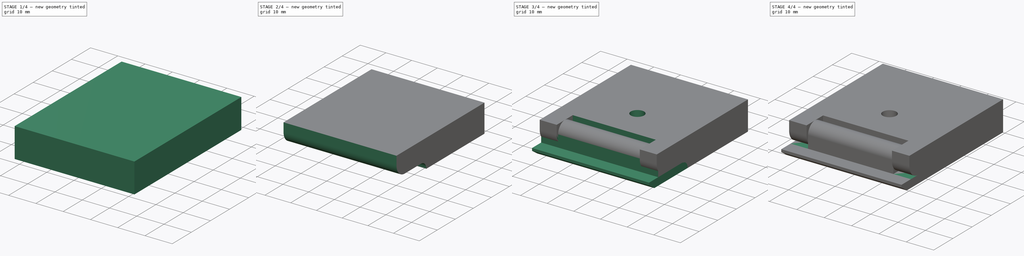
[diagram: build sequence overview — one tinted view per stage of 4, left to right]
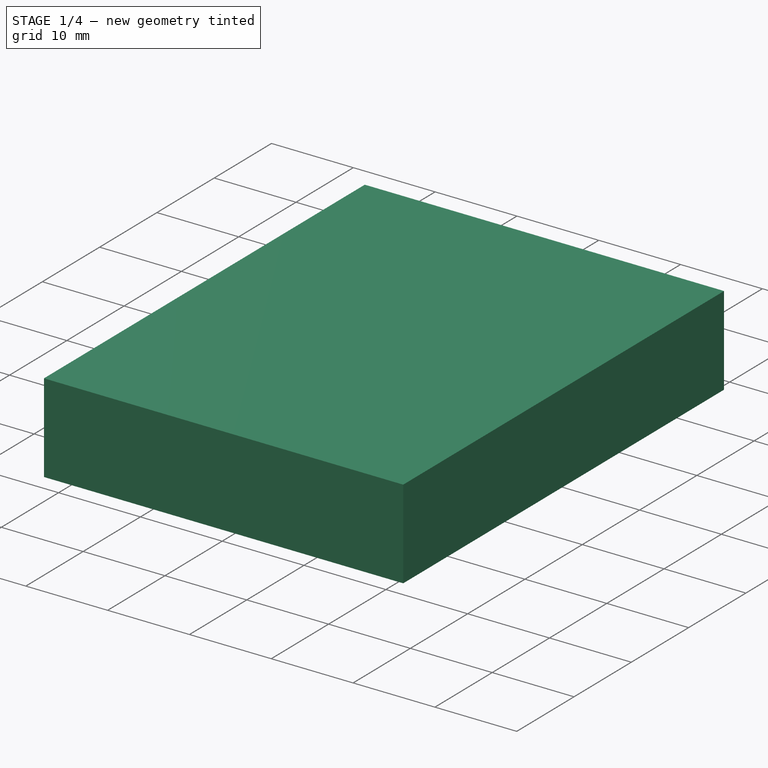
[diagram: stage 1 of 4 — iso view after this stage's code; geometry added in this stage tinted green]
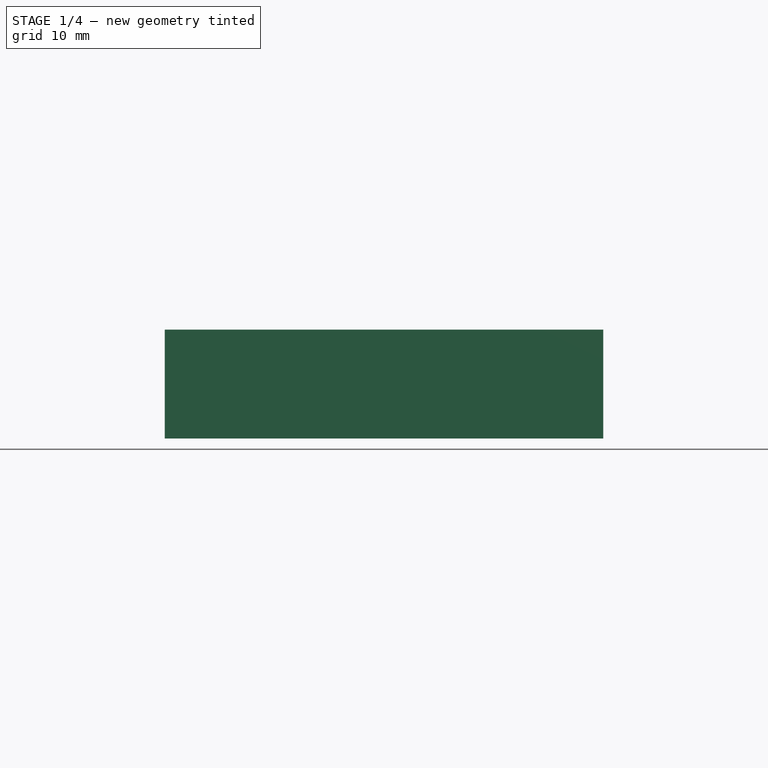
[diagram: stage 1 of 4 — front view after this stage's code; geometry added in this stage tinted green]
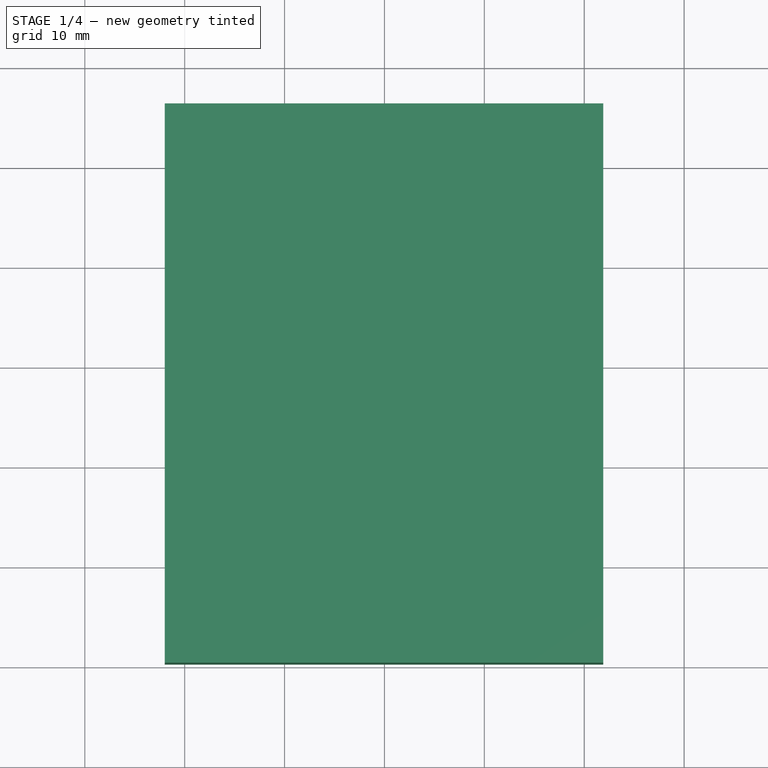
[diagram: stage 1 of 4 — top view after this stage's code; geometry added in this stage tinted green]
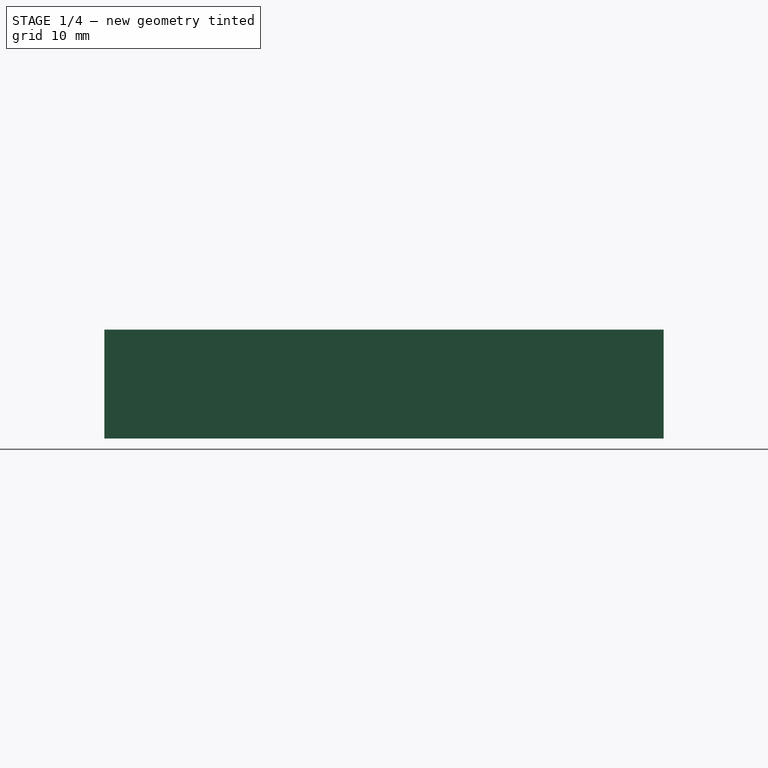
[diagram: stage 1 of 4 — right view after this stage's code; geometry added in this stage tinted green]
FCSTD DOCUMENT  (FreeCAD 0.17R7745 (Git))
Label: Logitech C920 webcam
License: All rights reserved
LicenseURL: http://en.wikipedia.org/wiki/All_rights_reserved
objects: Part::Feature×7, Sketcher::SketchObject×7, PartDesign::Pocket×5, App::DocumentObjectGroup×4, Part::Cylinder×2, Part::Extrusion×2, Spreadsheet::Sheet×1
note: 28 computed .brp shape members not serialized (recipe doc carries the construction recipe); baked Part::Feature solids carry a one-line shape summary decoded from their .brp

FEATURE [Spreadsheet::Sheet] Spreadsheet  label="Dimensions"
  cells = A1=BaseWidth; B1(BaseWidth)==60mm; A2=BaseHeight; B2(BaseHeight)==2cm; A3=BaseThickness; B3(BaseThickness)==1mm; A5=BackWidth; B5(BackWidth)==43.9111mm; A6=BackHeight; B6(BackHeight)==80mm; A7=BackThickness; B7(BackThickness)==15mm; A8=BackScrewHoleDiameter; B8(BackScrewHoleDiameter)==5mm
FEATURE [Part::Feature] Part__Feature  label="Logitech C920 - Arm stock"
  Placement = pos=(66.9556,66.3038,41.2995) rot=(0,0.707107,-0.707107;3.14159rad)
  shape: bbox 44.07 x 62.25 x 22.71 mm, 41 faces (baked)
FEATURE [Part::Feature] Part__Feature001  label="Logitech C920"
  Placement = pos=(0,1.80377,24.7995) rot=(-1,0,0;1.5708rad)
  shape: bbox 93.99 x 24 x 36.36 mm, 77 faces (baked)
FEATURE [Part::Feature] Part__Feature002  label="Logitech C920 - Glass"
  Placement = pos=(49.9697,2.30377,11.2065) rot=(0,0.707107,-0.707107;3.14159rad)
  shape: bbox 61 x 0.51 x 24.19 mm, 110 faces (baked)
FEATURE [Part::Feature] Part__Feature003  label="Tripod Screw"
  Placement = pos=(49.9556,38.3038,44.7935) rot=(-1,0,0;1.5708rad)
  shape: bbox 11.5 x 11.5 x 15.06 mm, 35 faces (baked)
FEATURE [Part::Feature] Part__Feature004  label="2mm Swivel Pin"
  Placement = pos=(52.7056,38.3038,43.2935) rot=(-1,0,0;1.5708rad)
  shape: bbox 5 x 2 x 2 mm, 4 faces (baked)
FEATURE [Part::Feature] Part__Feature005  label="2mm Swivel Pin001"
  Placement = pos=(42.2056,38.3038,43.2935) rot=(-1,0,0;1.5708rad)
  shape: bbox 5 x 2 x 2 mm, 4 faces (baked)
FEATURE [Part::Feature] Part__Feature006  label="D-Ring"
  Placement = pos=(49.9137,38.3038,45.0435) rot=(-1,0,0;1.5708rad)
  shape: bbox 16 x 9.75 x 3.5 mm, 16 faces (baked)
FEATURE [App::DocumentObjectGroup] Group  label="Tripod screw"
  Group = -> [Part__Feature003,Part__Feature004,Part__Feature005,Part__Feature006]
FEATURE [Sketcher::SketchObject] Sketch
  ExternalGeometry = -> [Part__Feature]
  MapMode = 5
  Placement = pos=(69.9519,66.4084,41.2995) rot=(0.707053,0.012342,0.707053;3.16628rad)
  Support = -> [Part__Feature]
  sketch-geometry (4):
    g0: LineSegment StartX=-11.9 StartY=56.1388 StartZ=0 EndX=0 EndY=56.1388 EndZ=0
    g1: LineSegment StartX=0 StartY=56.1388 StartZ=0 EndX=0 EndY=-5 EndZ=0
    g2: LineSegment StartX=0 StartY=-5 StartZ=0 EndX=-11.9 EndY=-5 EndZ=0
    g3: LineSegment StartX=-11.9 StartY=-5 StartZ=0 EndX=-11.9 EndY=56.1388 EndZ=0
  constraints (12):
    c: DistanceX(g-4,g2) = 6.1
    c: DistanceY(g1,g-1) = 5
    c: Coincident(g1,g2)
    c: Horizontal(g2)
    c: Vertical(g3)
    c: Vertical(g1)
    c: Horizontal(g0)
    c: Coincident(g1,g0)
    c: Coincident(g3,g0)
    c: PointOnObject(g0,g-3)
    c: Coincident(g2,g3)
    c: PointOnObject(g1,g-5)
FEATURE [PartDesign::Pocket] Pocket  label="Logitech C920 - Arm top"
  Length = 5
  Placement = pos=(66.9556,66.3038,41.2995) rot=(0,0.707107,-0.707107;3.14159rad)
  Profile = -> Sketch
  Type = 1
FEATURE [Sketcher::SketchObject] Sketch001  label="Logitech C920 - Arm bottom stock shape"
  ExternalGeometry = -> [Pocket]
  MapMode = 5
  Placement = pos=(66.9556,66.3038,29.3995) rot=(0,0,1;3.14159rad)
  Support = -> [Pocket]
  sketch-geometry (4):
    g0: LineSegment StartX=-4.95556 StartY=56 StartZ=0 EndX=38.9556 EndY=56 EndZ=0
    g1: LineSegment StartX=38.9556 StartY=56 StartZ=0 EndX=38.9556 EndY=0 EndZ=0
    g2: LineSegment StartX=38.9556 StartY=0 StartZ=0 EndX=-4.95556 EndY=0 EndZ=0
    g3: LineSegment StartX=-4.95556 StartY=0 StartZ=0 EndX=-4.95556 EndY=56 EndZ=0
  constraints (11):
    c: Coincident(g0,g1)
    c: Coincident(g1,g2)
    c: Coincident(g2,g3)
    c: Coincident(g3,g0)
    c: Horizontal(g0)
    c: Horizontal(g2)
    c: Vertical(g1)
    c: Vertical(g3)
    c: Coincident(g0,g-4)
    c: PointOnObject(g-3,g1)
    c: PointOnObject(g-3,g2)
FEATURE [Part::Extrusion] Extrude  label="Logitech C920 - Arm bottom stock"
  Base = -> Sketch001
  Dir = (0,0,10.9)
  Solid = true
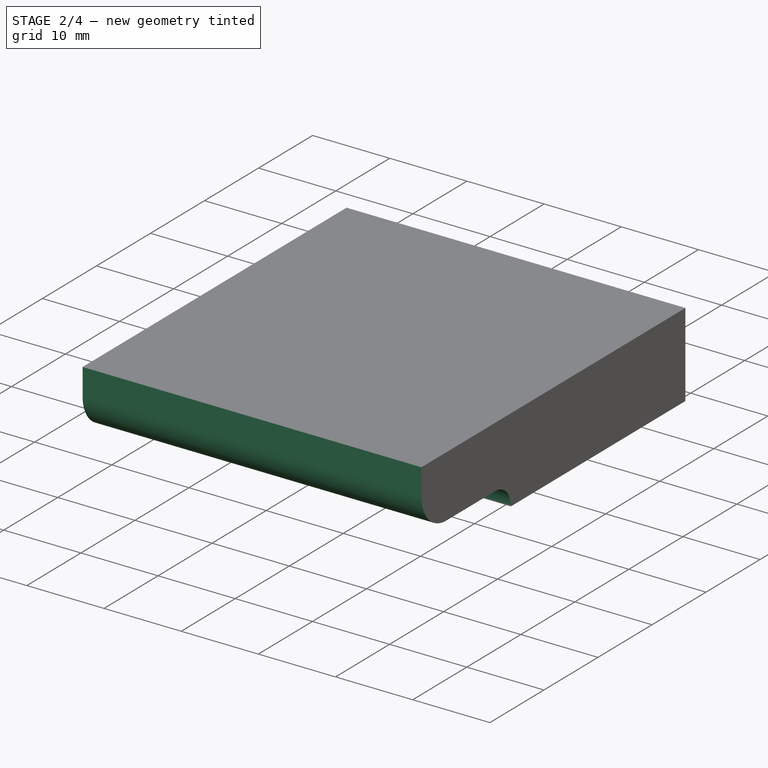
[diagram: stage 2 of 4 — iso view after this stage's code; geometry added in this stage tinted green]
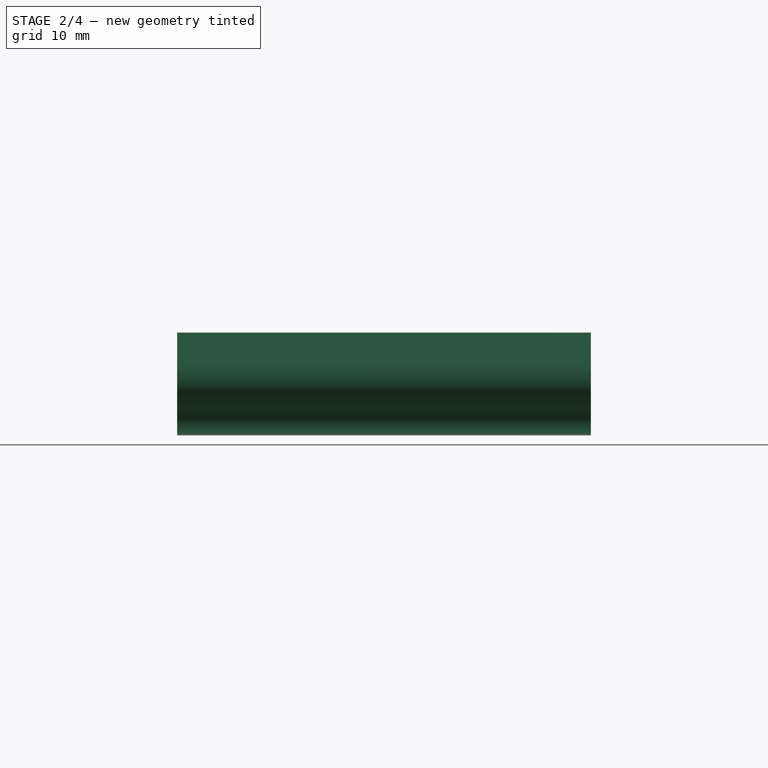
[diagram: stage 2 of 4 — front view after this stage's code; geometry added in this stage tinted green]
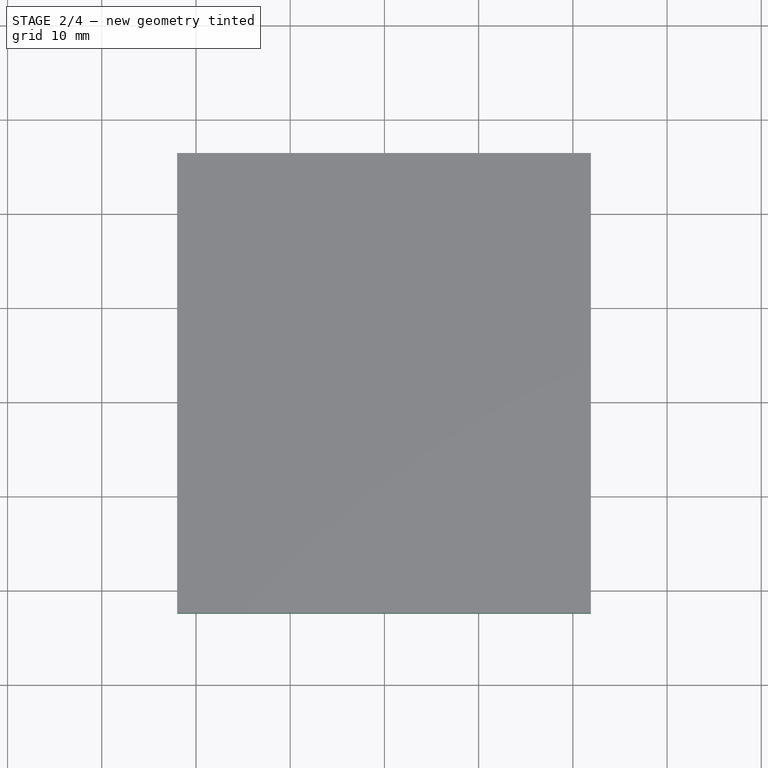
[diagram: stage 2 of 4 — top view after this stage's code; geometry added in this stage tinted green]
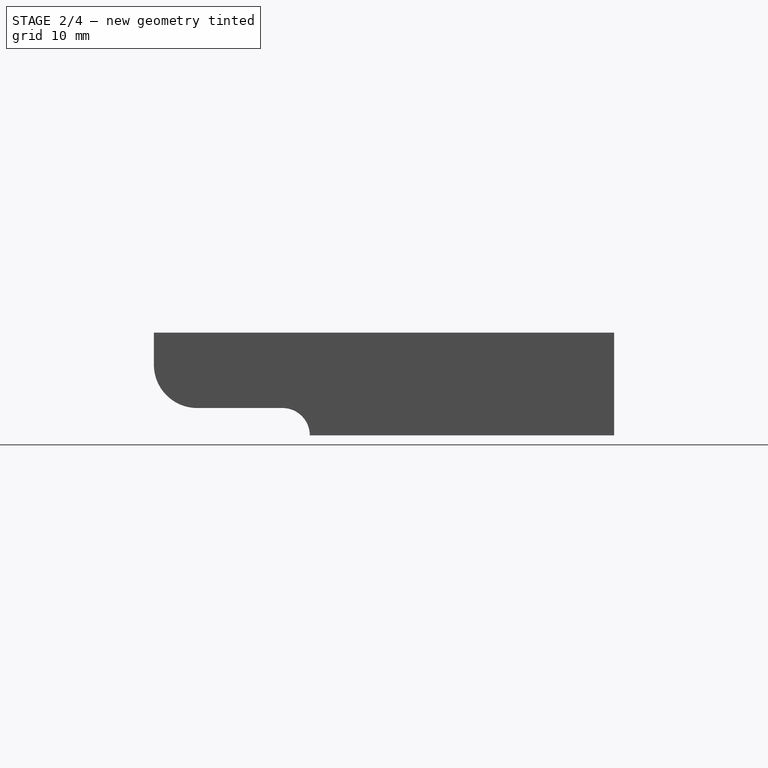
[diagram: stage 2 of 4 — right view after this stage's code; geometry added in this stage tinted green]
FEATURE [Part::Cylinder] Cylinder  label="Logitech C920 - Arm bottom hinge"
  Angle = 360
  AttacherType = Attacher::AttachEngine3D
  Height = 31.1652
  Placement = pos=(34.3729,21.7538,36.7695) rot=(0.707107,0,0.707107;3.14159rad)
  Radius = 3.53
FEATURE [Sketcher::SketchObject] Sketch002  label="Logitech C920 - Arm bottom - side contour shape"
  ExternalGeometry = -> [Pocket,Extrude]
  MapMode = 5
  Placement = pos=(71.9111,0,0) rot=(0.57735,0.57735,0.57735;2.0944rad)
  Support = -> [Extrude]
  sketch-geometry (7):
    g0: LineSegment StartX=10.3038 StartY=29.3995 StartZ=0 EndX=34.0038 EndY=29.3995 EndZ=0
    g1: LineSegment StartX=10.3038 StartY=40.2995 StartZ=0 EndX=10.3038 EndY=29.3995 EndZ=0
    g2: ArcOfCircle CenterX=31.1038 CenterY=29.3995 CenterZ=0 NormalX=0 NormalY=0 NormalZ=1 Radius=2.9 StartAngle=0 EndAngle=1.5708
    g3: ArcOfCircle CenterX=22.0538 CenterY=36.8995 CenterZ=0 NormalX=0 NormalY=0 NormalZ=1 Radius=4.6 StartAngle=3.14159 EndAngle=4.71239
    g4: LineSegment StartX=17.4538 StartY=36.8995 StartZ=0 EndX=17.4538 EndY=40.2995 EndZ=0
    g5: LineSegment StartX=10.3038 StartY=40.2995 StartZ=0 EndX=17.4538 EndY=40.2995 EndZ=0
    g6: LineSegment StartX=22.0538 StartY=32.2995 StartZ=0 EndX=31.1038 EndY=32.2995 EndZ=0
  constraints (23):
    c: Coincident(g1,g0)
    c: Horizontal(g0)
    c: Vertical(g1)
    c: Coincident(g2,g0)
    c: Coincident(g4,g3)
    c: Vertical(g4)
    c: Tangent(g4,g3)
    c: Coincident(g5,g1)
    c: Horizontal(g5)
    c: Coincident(g4,g5)
    c: DistanceY(g3,g4) = 8
    c: PointOnObject(g-5,g5)
    c: PointOnObject(g-5,g1)
    c: PointOnObject(g-3,g0)
    c: Horizontal(g6)
    c: Coincident(g6,g2)
    c: Tangent(g6,g2)
    c: Coincident(g3,g6)
    c: Perpendicular(g2,g-3)
    c: Tangent(g3,g6)
    c: DistanceX(g4,g-5) = 48.85
    c: DistanceX(g4,g3) = 4.6
    c: DistanceX(g0,g-3) = 32.3
FEATURE [PartDesign::Pocket] Pocket001  label="Logitech C920 - Arm bottom - side contour pocket"
  Length = 0
  Profile = -> Sketch002
  Type = 1
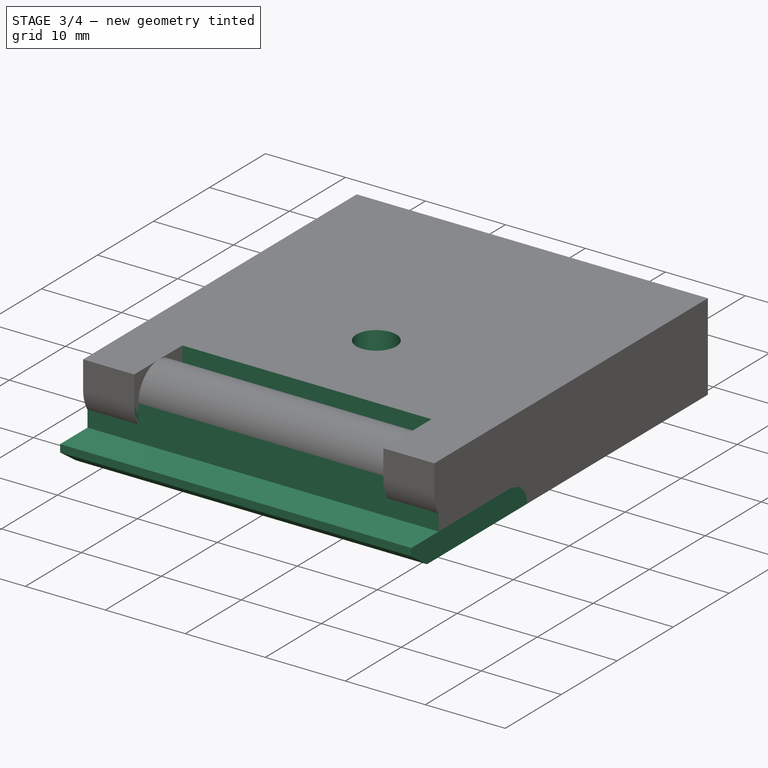
[diagram: stage 3 of 4 — iso view after this stage's code; geometry added in this stage tinted green]
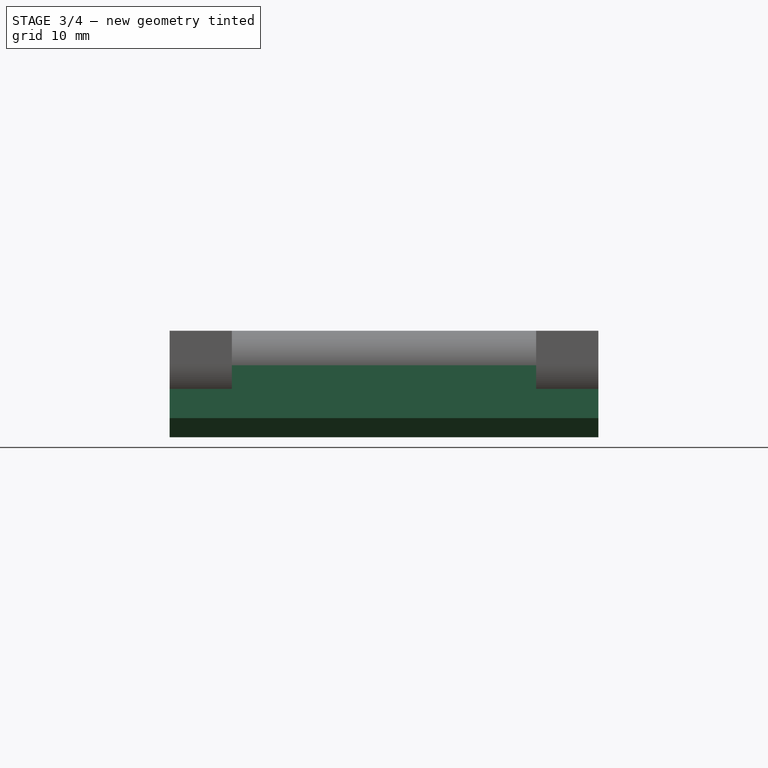
[diagram: stage 3 of 4 — front view after this stage's code; geometry added in this stage tinted green]
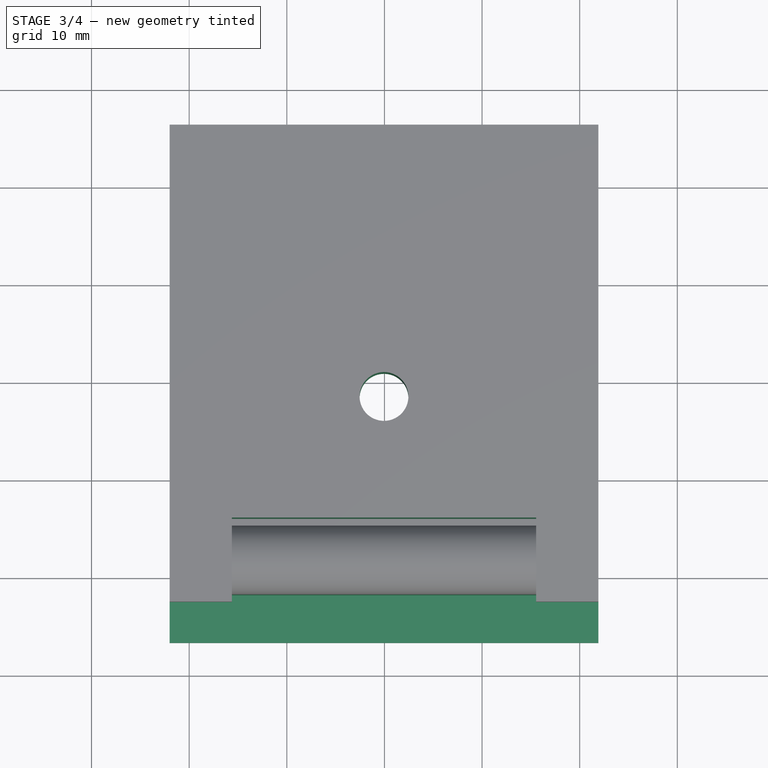
[diagram: stage 3 of 4 — top view after this stage's code; geometry added in this stage tinted green]
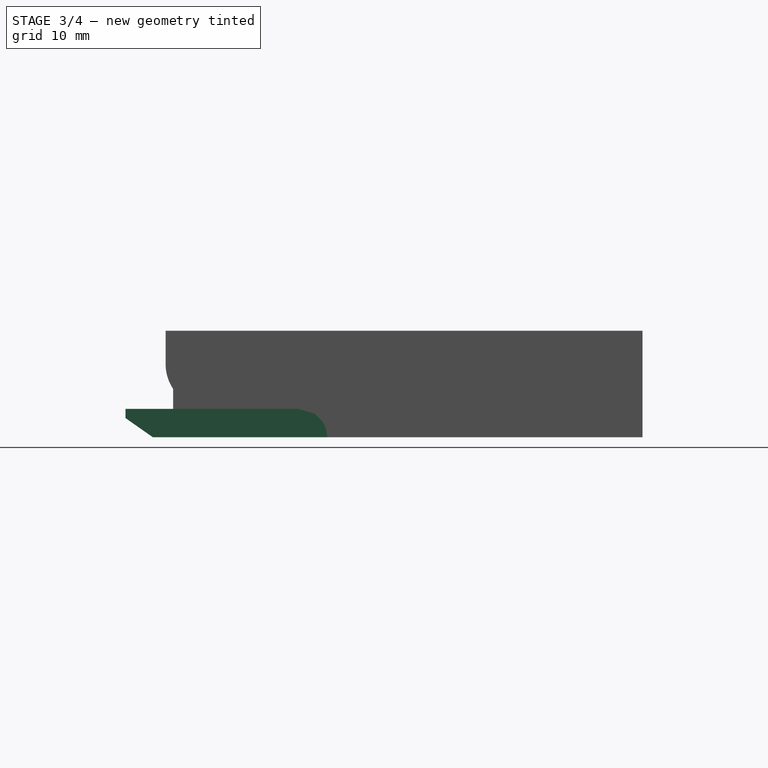
[diagram: stage 3 of 4 — right view after this stage's code; geometry added in this stage tinted green]
FEATURE [Sketcher::SketchObject] Sketch003  label="Logitech C920 - Arm bottom hinge hole contour shape"
  ExternalGeometry = -> [Cylinder,Pocket001]
  MapMode = 5
  Placement = pos=(0,0,40.2995) rot=(0,0,1;0rad)
  Support = -> [Pocket001]
  sketch-geometry (4):
    g0: LineSegment StartX=34.3729 StartY=26.0538 StartZ=0 EndX=65.5381 EndY=26.0538 EndZ=0
    g1: LineSegment StartX=65.5381 StartY=26.0538 StartZ=0 EndX=65.5381 EndY=17.4538 EndZ=0
    g2: LineSegment StartX=65.5381 StartY=17.4538 StartZ=0 EndX=34.3729 EndY=17.4538 EndZ=0
    g3: LineSegment StartX=34.3729 StartY=17.4538 StartZ=0 EndX=34.3729 EndY=26.0538 EndZ=0
  constraints (12):
    c: Coincident(g0,g1)
    c: Coincident(g1,g2)
    c: Coincident(g2,g3)
    c: Coincident(g3,g0)
    c: Horizontal(g0)
    c: Horizontal(g2)
    c: Vertical(g1)
    c: Vertical(g3)
    c: PointOnObject(g0,g-3)
    c: PointOnObject(g-5,g2)
    c: Symmetric(g0,g1,g-4)
    c: PointOnObject(g-4,g1)
FEATURE [PartDesign::Pocket] Pocket002  label="Logitech C920 - Arm bottom - Hinge hole contour"
  Length = 5
  Profile = -> Sketch003
  Type = 1
FEATURE [Sketcher::SketchObject] Sketch004  label="Logitech C920 - Arm bottom foot contour shape"
  ExternalGeometry = -> [Pocket002,Cylinder]
  MapMode = 5
  Placement = pos=(71.9111,0,0) rot=(0.57735,0.57735,0.57735;2.0944rad)
  Support = -> [Pocket002]
  sketch-geometry (9):
    g0: ArcOfCircle CenterX=31.1038 CenterY=29.3995 CenterZ=0 NormalX=0 NormalY=0 NormalZ=1 Radius=2.9 StartAngle=0 EndAngle=1.5708
    g1: LineSegment StartX=18.2238 StartY=32.2995 StartZ=0 EndX=13.3438 EndY=32.2995 EndZ=0
    g2: LineSegment StartX=34.0038 StartY=29.3995 StartZ=0 EndX=16.1438 EndY=29.3995 EndZ=0
    g3: LineSegment StartX=16.1438 StartY=29.3995 StartZ=0 EndX=13.3438 EndY=31.36 EndZ=0
    g4: LineSegment StartX=13.3438 StartY=31.36 StartZ=0 EndX=13.3438 EndY=32.2995 EndZ=0
    g5: LineSegment StartX=31.1038 StartY=32.2995 StartZ=0 EndX=25.2838 EndY=32.2995 EndZ=0
    g6: LineSegment StartX=25.2838 StartY=32.2995 StartZ=0 EndX=25.2838 EndY=36.7695 EndZ=0
    g7: LineSegment StartX=18.2238 StartY=32.2995 StartZ=0 EndX=18.2238 EndY=36.7695 EndZ=0
    g8: ArcOfCircle CenterX=21.7538 CenterY=36.7695 CenterZ=0 NormalX=0 NormalY=0 NormalZ=1 Radius=3.53 StartAngle=5.0628e-08 EndAngle=3.14159
  constraints (26):
    c: Horizontal(g1)
    c: DistanceX(g1,g0) = 20.66
    c: Coincident(g2,g0)
    c: Horizontal(g2)
    c: Coincident(g3,g2)
    c: Vertical(g4)
    c: Coincident(g3,g4)
    c: Angle(g2,g3) = 2.53073
    c: Coincident(g0,g-3)
    c: Coincident(g0,g-3)
    c: DistanceX(g3,g2) = 2.8
    c: Coincident(g5,g0)
    c: Horizontal(g5)
    c: Coincident(g6,g5)
    c: Vertical(g6)
    c: Coincident(g7,g1)
    c: Vertical(g7)
    c: Coincident(g8,g7)
    c: Coincident(g8,g6)
    c: Tangent(g8,g7)
    c: Tangent(g8,g6)
    c: Coincident(g-4,g8)
    c: Coincident(g4,g1)
    c: Equal(g0,g-3)
    c: PointOnObject(g1,g5)
    c: Equal(g8,g-4)
FEATURE [Part::Extrusion] Extrude001  label="Logitech C920 - Arm bottom foot - Side contour"
  Base = -> Sketch004
  Dir = (-43.9111,0,0)
  Solid = true
  expr: Dir.x = -Dimensions.BackWidth / 1mm
FEATURE [Sketcher::SketchObject] Sketch006  label="Logitech C920 - Arm bottom tripod hole shape"
  ExternalGeometry = -> [Pocket002]
  MapMode = 5
  Placement = pos=(0,0,40.2995) rot=(0,0,1;0rad)
  Support = -> [Pocket002]
  sketch-geometry (3):
    g0: Circle CenterX=49.9556 CenterY=38.4538 CenterZ=0 NormalX=0 NormalY=0 NormalZ=1 Radius=2.5
    g1: LineSegment [constr] StartX=49.9556 StartY=38.4538 StartZ=0 EndX=28 EndY=38.4538 EndZ=0
    g2: LineSegment [constr] StartX=49.9556 StartY=38.4538 StartZ=0 EndX=71.9111 EndY=38.4538 EndZ=0
  constraints (9):
    c: Radius(g0) = 2.5
    c: DistanceY(g-4,g0) = 21
    c: Coincident(g1,g0)
    c: PointOnObject(g1,g-4)
    c: Horizontal(g1)
    c: Coincident(g2,g0)
    c: PointOnObject(g2,g-3)
    c: Horizontal(g2)
    c: Equal(g2,g1)
FEATURE [PartDesign::Pocket] Pocket004  label="Logitech C920 - Arm bottom - Tripod hole pocket"
  Length = 5
  Profile = -> Sketch006
  Type = 2
FEATURE [App::DocumentObjectGroup] Group002  label="Logitech C920 - Arm -Draft"
  Group = -> [Pocket001,Extrude,Pocket002,Extrude001,Group,Part__Feature]
FEATURE [App::DocumentObjectGroup] Group003  label="Logitech C920 - Arm - Part"
  Group = -> [Pocket,Cylinder,Cylinder001,Pocket004,Pocket003]
FEATURE [App::DocumentObjectGroup] Group001  label="Logitech C920 - Arm"
  Group = -> [Group002,Group003]
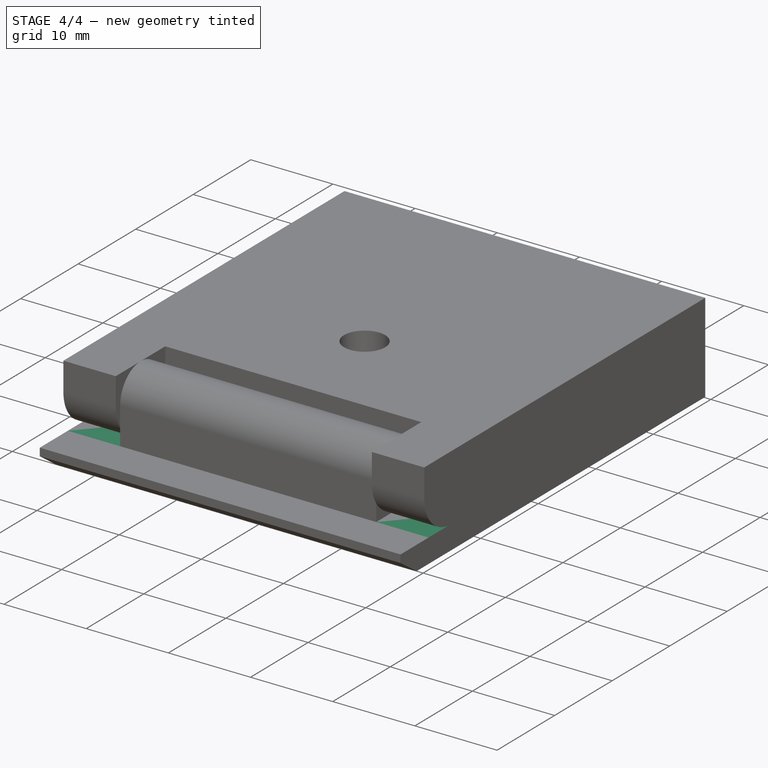
[diagram: stage 4 of 4 — iso view after this stage's code; geometry added in this stage tinted green]
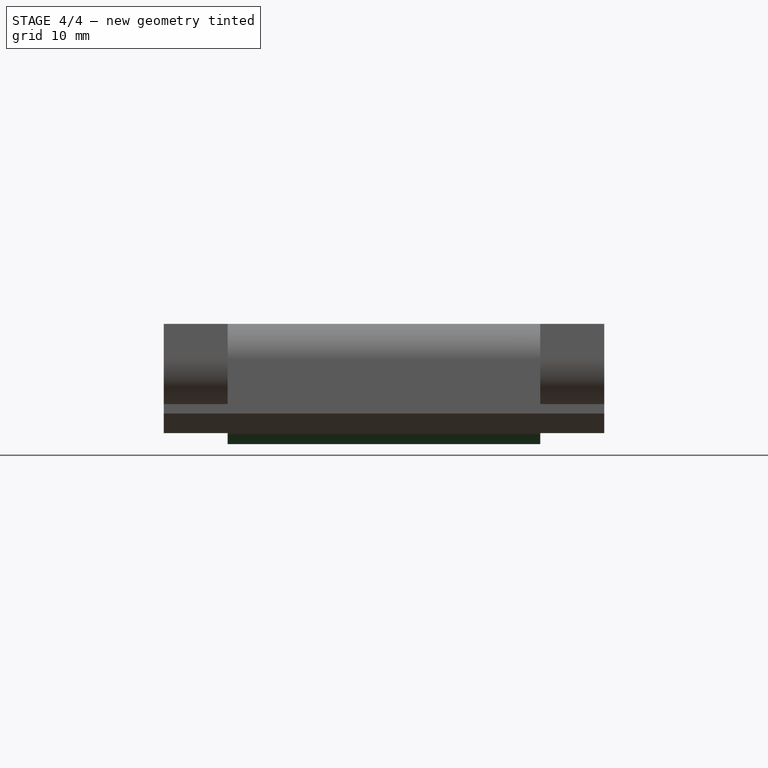
[diagram: stage 4 of 4 — front view after this stage's code; geometry added in this stage tinted green]
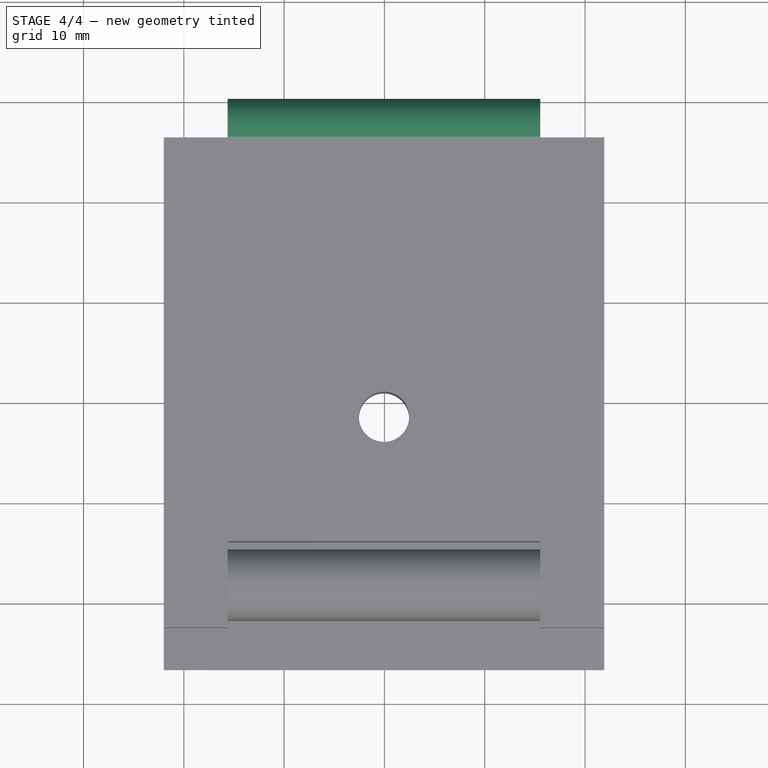
[diagram: stage 4 of 4 — top view after this stage's code; geometry added in this stage tinted green]
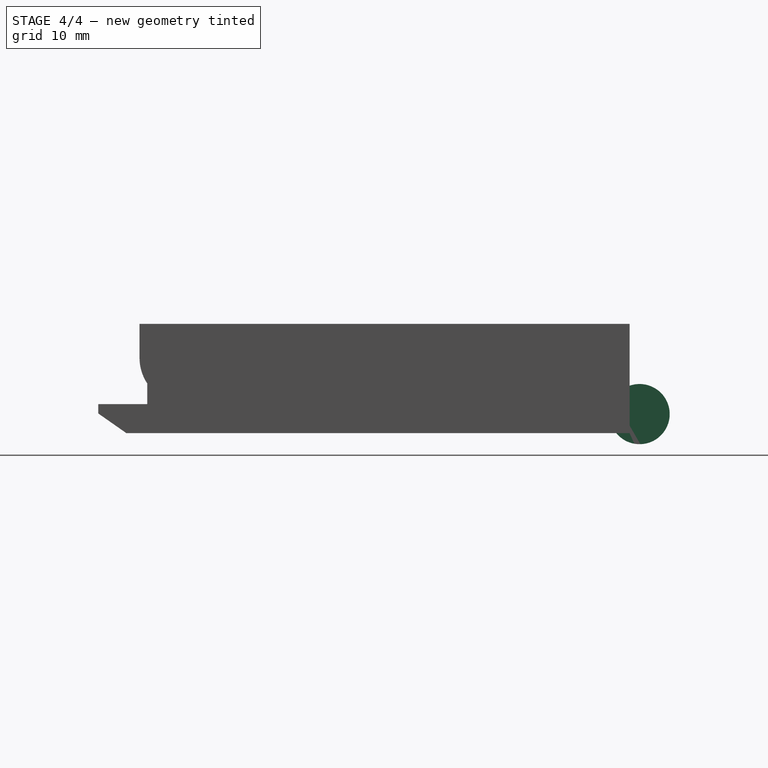
[diagram: stage 4 of 4 — right view after this stage's code; geometry added in this stage tinted green]
FEATURE [Part::Cylinder] Cylinder001  label="Logitech C920 - Arm middle hinge"
  Angle = 360
  AttacherType = Attacher::AttachEngine3D
  Height = 31.1652
  Placement = pos=(34.3729,67.3038,31.2995) rot=(0.57735,0.57735,0.57735;2.0944rad)
  Radius = 3
FEATURE [Sketcher::SketchObject] Sketch005  label="Logitech C920 - Arm bottom foot hinge pocket shape"
  ExternalGeometry = -> [Extrude001,Pocket002]
  MapMode = 5
  Placement = pos=(0,18.2238,0) rot=(1,0,0;1.5708rad)
  Support = -> [Extrude001]
  sketch-geometry (8):
    g0: LineSegment StartX=28 StartY=40.2995 StartZ=0 EndX=34.3729 EndY=40.2995 EndZ=0
    g1: LineSegment StartX=34.3729 StartY=40.2995 StartZ=0 EndX=34.3729 EndY=32.2995 EndZ=0
    g2: LineSegment StartX=34.3729 StartY=32.2995 StartZ=0 EndX=28 EndY=32.2995 EndZ=0
    g3: LineSegment StartX=28 StartY=32.2995 StartZ=0 EndX=28 EndY=40.2995 EndZ=0
    g4: LineSegment StartX=71.9111 StartY=40.2995 StartZ=0 EndX=65.5381 EndY=40.2995 EndZ=0
    g5: LineSegment StartX=65.5381 StartY=40.2995 StartZ=0 EndX=65.5381 EndY=32.2995 EndZ=0
    g6: LineSegment StartX=65.5381 StartY=32.2995 StartZ=0 EndX=71.9111 EndY=32.2995 EndZ=0
    g7: LineSegment StartX=71.9111 StartY=32.2995 StartZ=0 EndX=71.9111 EndY=40.2995 EndZ=0
  constraints (22):
    c: Coincident(g0,g1)
    c: Coincident(g1,g2)
    c: Coincident(g2,g3)
    c: Coincident(g3,g0)
    c: Horizontal(g0)
    c: Horizontal(g2)
    c: Vertical(g1)
    c: Vertical(g3)
    c: Coincident(g0,g-4)
    c: PointOnObject(g1,g-3)
    c: Coincident(g4,g5)
    c: Coincident(g5,g6)
    c: Coincident(g6,g7)
    c: Coincident(g7,g4)
    c: Horizontal(g4)
    c: Horizontal(g6)
    c: Vertical(g5)
    c: Vertical(g7)
    c: Coincident(g4,g-5)
    c: PointOnObject(g5,g-3)
    c: PointOnObject(g-4,g1)
    c: PointOnObject(g-5,g5)
FEATURE [PartDesign::Pocket] Pocket003  label="Logitech C920 - Arm bottom foot - Hinge pocket"
  Length = 5
  Profile = -> Sketch005
  Type = 1
  UpToFace = -> Part__Feature003 [Face22]
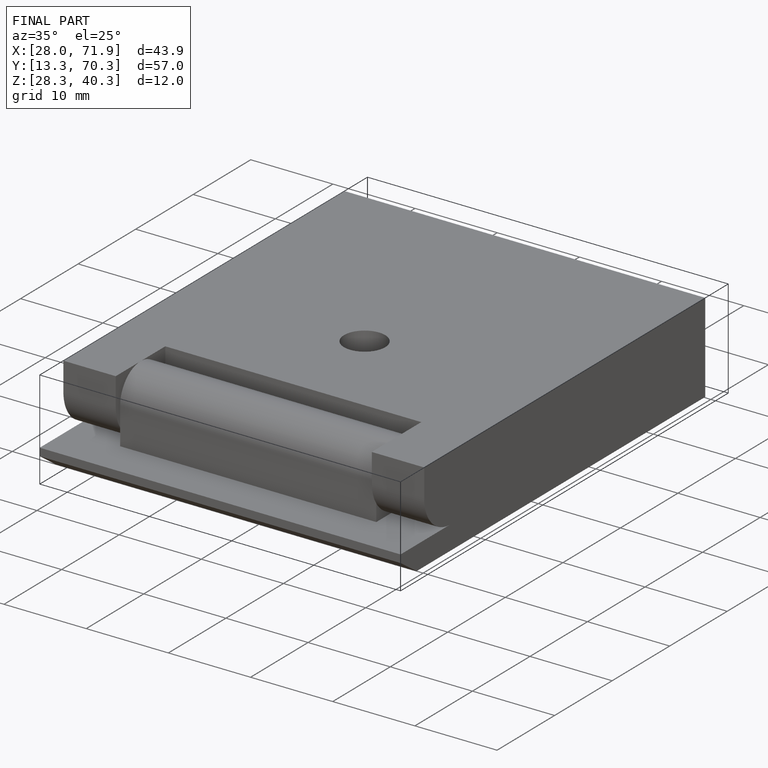
[diagram: finished part — iso view with bounding-box wireframe]
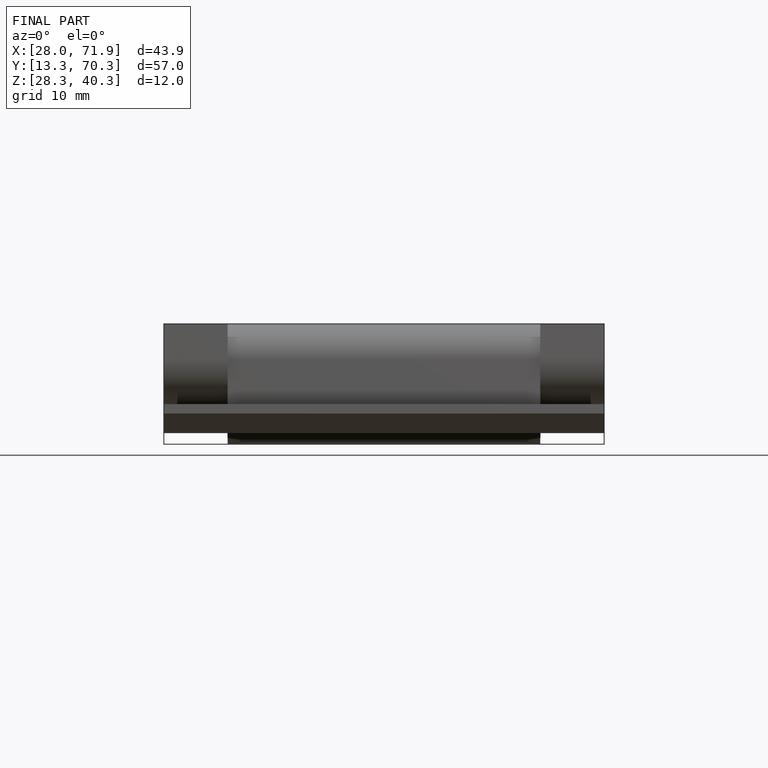
[diagram: finished part — front view with bounding-box wireframe]
